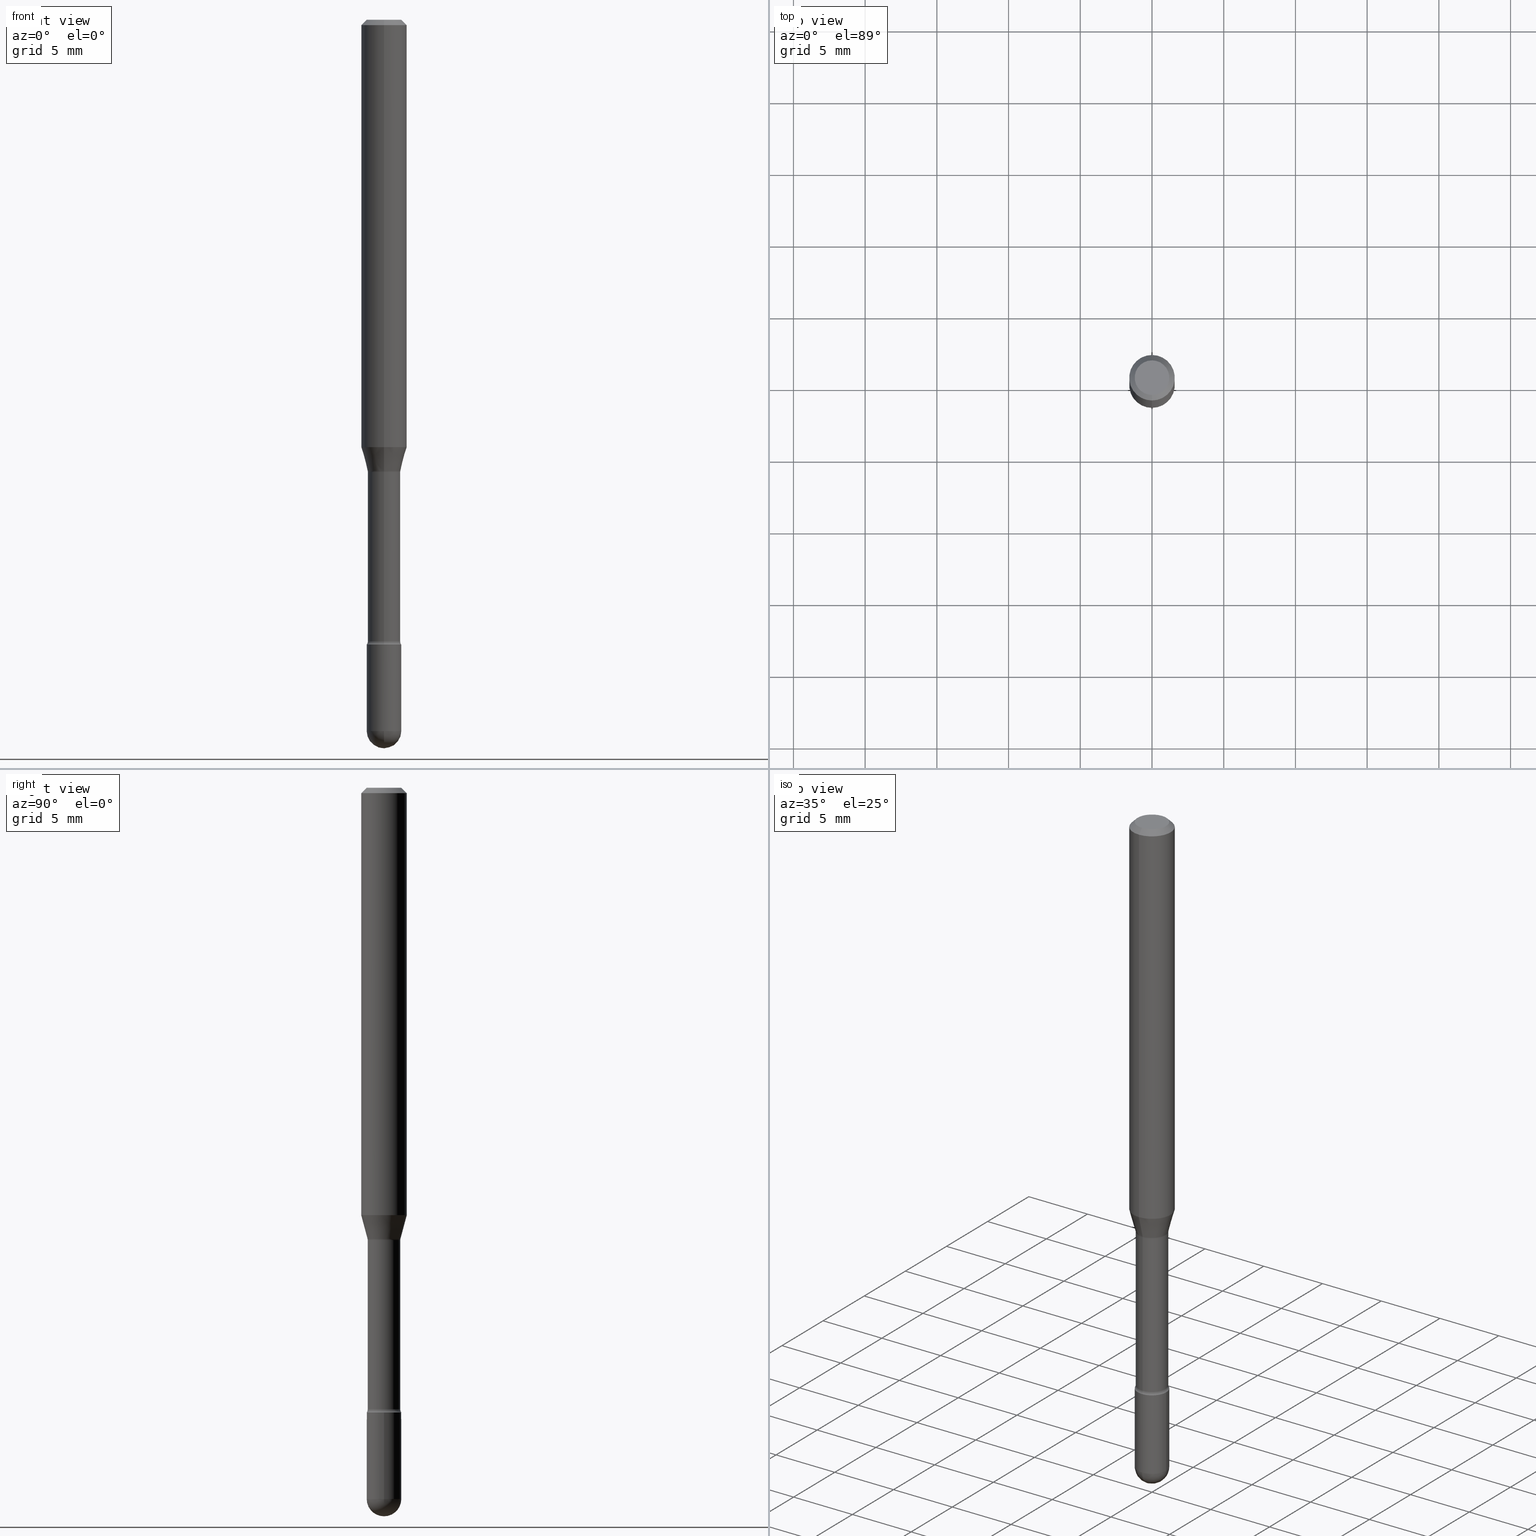
[diagram: canonical four-view strip — front | top / right | iso, engineering-drawing reading convention]
A machine part, canonical four-view strip (front | top / right | iso — engineering-drawing reading convention). The complete STEP part file that produces these views, byte-faithful:
ISO-10303-21;
HEADER;
FILE_DESCRIPTION (( 'STEP AP203' ),
    '1' );
FILE_NAME ('03773.STEP',
    '2024-04-09T20:24:47',
    ( '' ),
    ( '' ),
    'SwSTEP 2.0',
    'SolidWorks 2023',
    '' );
FILE_SCHEMA (( 'CONFIG_CONTROL_DESIGN' ));
ENDSEC;

DATA;
#1 = LINE ( 'NONE', #525, #320 ) ;
#2 = DIRECTION ( 'NONE',  ( -6.982962677686265922E-15, -1.000000000000000000, 3.491509824358550221E-15 ) ) ;
#3 = EDGE_LOOP ( 'NONE', ( #398, #395, #522, #301 ) ) ;
#4 = DIRECTION ( 'NONE',  ( -2.445448914856043624E-29, 3.491509824358551010E-15, 1.000000000000000000 ) ) ;
#5 = AXIS2_PLACEMENT_3D ( 'NONE', #421, #24, #65 ) ;
#6 = AXIS2_PLACEMENT_3D ( 'NONE', #251, #207, #156 ) ;
#7 = ORIENTED_EDGE ( 'NONE', *, *, #31, .T. ) ;
#8 = EDGE_CURVE ( 'NONE', #393, #205, #84, .T. ) ;
#9 = DIRECTION ( 'NONE',  ( -2.445448914856043624E-29, 3.491509824358551010E-15, 1.000000000000000000 ) ) ;
#10 = ORIENTED_EDGE ( 'NONE', *, *, #377, .F. ) ;
#11 = DIRECTION ( 'NONE',  ( -2.445468806185136597E-29, 3.491481338843145583E-15, 1.000000000000000000 ) ) ;
#12 = CARTESIAN_POINT ( 'NONE',  ( -4.287811248607203282E-16, -0.06250000000000005551, -0.01499999999999986587 ) ) ;
#13 = VERTEX_POINT ( 'NONE', #221 ) ;
#14 = EDGE_CURVE ( 'NONE', #293, #132, #387, .T. ) ;
#15 = ADVANCED_FACE ( 'NONE', ( #559 ), #175, .T. ) ;
#16 = DIRECTION ( 'NONE',  ( -2.445448914856043624E-29, 3.491509824358551010E-15, 1.000000000000000000 ) ) ;
#17 = CARTESIAN_POINT ( 'NONE',  ( -3.117892835586504621E-16, -0.04465000000000601821, -1.706203551853162415 ) ) ;
#18 = AXIS2_PLACEMENT_3D ( 'NONE', #240, #19, #544 ) ;
#19 = DIRECTION ( 'NONE',  ( -1.000000000000000000, 6.982962677686265922E-15, -4.883557194083112901E-29 ) ) ;
#20 = DIRECTION ( 'NONE',  ( -6.982962677686266711E-15, -1.000000000000000000, 5.751258934030028949E-15 ) ) ;
#21 = VERTEX_POINT ( 'NONE', #269 ) ;
#22 = DIRECTION ( 'NONE',  ( -2.445448914856043624E-29, 3.491509824358551010E-15, 1.000000000000000000 ) ) ;
#23 = DIRECTION ( 'NONE',  ( 1.839019923739599526E-15, 0.2588190451025248473, 0.9659258262890670910 ) ) ;
#24 = DIRECTION ( 'NONE',  ( -2.445448914856043624E-29, 3.491509824358551010E-15, 1.000000000000000000 ) ) ;
#25 = AXIS2_PLACEMENT_3D ( 'NONE', #168, #119, #433 ) ;
#26 = AXIS2_PLACEMENT_3D ( 'NONE', #232, #39, #223 ) ;
#27 = DIRECTION ( 'NONE',  ( -6.982962677686266711E-15, -1.000000000000000000, 3.491509824358551404E-15 ) ) ;
#28 = CARTESIAN_POINT ( 'NONE',  ( 3.316907271901453357E-16, 0.04749999999999317268, -1.952500000000000346 ) ) ;
#29 = SHAPE_DEFINITION_REPRESENTATION ( #166, #333 ) ;
#30 = CARTESIAN_POINT ( 'NONE',  ( -3.153583638081081446E-16, -0.04516111260566831043, -1.238092501787272814 ) ) ;
#31 = EDGE_CURVE ( 'NONE', #393, #280, #308, .T. ) ;
#32 = EDGE_CURVE ( 'NONE', #101, #397, #430, .T. ) ;
#33 = CLOSED_SHELL ( 'NONE', ( #510, #521, #15, #494, #174 ) ) ;
#34 = CIRCLE ( 'NONE', #120, 0.06250000000000000000 ) ;
#35 = EDGE_LOOP ( 'NONE', ( #204, #7, #566, #87 ) ) ;
#36 = AXIS2_PLACEMENT_3D ( 'NONE', #146, #493, #497 ) ;
#37 = FACE_OUTER_BOUND ( 'NONE', #187, .T. ) ;
#38 = DIRECTION ( 'NONE',  ( 2.445448914856043064E-29, -3.491509824358551010E-15, -1.000000000000000000 ) ) ;
#39 = DIRECTION ( 'NONE',  ( -2.445468806185136597E-29, 3.491481338843145583E-15, 1.000000000000000000 ) ) ;
#40 = DIRECTION ( 'NONE',  ( -6.982962677686266711E-15, -1.000000000000000000, 6.049115790211160649E-15 ) ) ;
#41 = ORIENTED_EDGE ( 'NONE', *, *, #300, .T. ) ;
#42 = ORIENTED_EDGE ( 'NONE', *, *, #341, .F. ) ;
#43 = APPROVAL_DATE_TIME ( #261, #260 ) ;
#44 = ORIENTED_EDGE ( 'NONE', *, *, #352, .F. ) ;
#45 = DIRECTION ( 'NONE',  ( -7.105427357601001070E-15, -1.000000000000000000, 0.000000000000000000 ) ) ;
#46 = ORIENTED_EDGE ( 'NONE', *, *, #128, .F. ) ;
#47 = AXIS2_PLACEMENT_3D ( 'NONE', #490, #56, #556 ) ;
#48 = ORIENTED_EDGE ( 'NONE', *, *, #461, .F. ) ;
#49 = AXIS2_PLACEMENT_3D ( 'NONE', #412, #200, #323 ) ;
#50 = AXIS2_PLACEMENT_3D ( 'NONE', #262, #217, #40 ) ;
#51 = CC_DESIGN_APPROVAL ( #343, ( #143 ) ) ;
#52 = EDGE_LOOP ( 'NONE', ( #48, #312, #469, #499 ) ) ;
#53 = CARTESIAN_POINT ( 'NONE',  ( 4.172433624402844054E-29, -5.957226463650771569E-15, -1.706203551853162859 ) ) ;
#54 = EDGE_LOOP ( 'NONE', ( #10, #249, #486, #429 ) ) ;
#55 = DIRECTION ( 'NONE',  ( -6.982962677686265922E-15, -1.000000000000000000, 6.118360568117042054E-15 ) ) ;
#56 = DIRECTION ( 'NONE',  ( -2.445468806185136597E-29, 3.491481338843145583E-15, 1.000000000000000000 ) ) ;
#57 = PERSON_AND_ORGANIZATION ( #313, #165 ) ;
#58 = ORIENTED_EDGE ( 'NONE', *, *, #405, .T. ) ;
#59 = APPROVAL_STATUS ( 'not_yet_approved' ) ;
#60 = CIRCLE ( 'NONE', #163, 0.04465000000000006464 ) ;
#61 = CIRCLE ( 'NONE', #18, 0.01499999999999999424 ) ;
#62 = CC_DESIGN_SECURITY_CLASSIFICATION ( #143, ( #259 ) ) ;
#63 = ORIENTED_EDGE ( 'NONE', *, *, #551, .F. ) ;
#64 = PERSON_AND_ORGANIZATION ( #313, #165 ) ;
#65 = DIRECTION ( 'NONE',  ( -6.982962677686265922E-15, -1.000000000000000000, 3.491509824358551010E-15 ) ) ;
#66 = APPROVAL_ROLE ( '' ) ;
#67 = CARTESIAN_POINT ( 'NONE',  ( 3.027691964987090790E-29, -4.322812133454920602E-15, -1.238092501787273036 ) ) ;
#68 = AXIS2_PLACEMENT_3D ( 'NONE', #103, #539, #507 ) ;
#69 = EDGE_CURVE ( 'NONE', #21, #224, #138, .T. ) ;
#70 = DIRECTION ( 'NONE',  ( -6.982962677686265922E-15, -1.000000000000000000, 3.483106191921935554E-15 ) ) ;
#71 = VERTEX_POINT ( 'NONE', #357 ) ;
#72 = EDGE_CURVE ( 'NONE', #293, #280, #220, .T. ) ;
#73 = DIRECTION ( 'NONE',  ( -1.807323732225329350E-15, -0.2588190451025180194, 0.9659258262890689783 ) ) ;
#74 = ORIENTED_EDGE ( 'NONE', *, *, #169, .T. ) ;
#75 = EDGE_CURVE ( 'NONE', #256, #224, #116, .T. ) ;
#76 = CIRCLE ( 'NONE', #516, 0.04749999999999999362 ) ;
#77 = CARTESIAN_POINT ( 'NONE',  ( 0.04750000000000000749, -3.316907271900977082E-16, 2.316183968503069432E-30 ) ) ;
#78 = VECTOR ( 'NONE', #434, 39.37007874015748143 ) ;
#79 = CARTESIAN_POINT ( 'NONE',  ( 0.000000000000000000, 0.000000000000000000, 0.000000000000000000 ) ) ;
#80 = CC_DESIGN_DATE_AND_TIME_ASSIGNMENT ( #295, #111, ( #143 ) ) ;
#81 = CARTESIAN_POINT ( 'NONE',  ( 3.375077994860895005E-16, 0.04749999999999401923, -1.715000000000000524 ) ) ;
#82 = DIRECTION ( 'NONE',  ( -2.445448914856043624E-29, 3.491509824358551010E-15, 1.000000000000000000 ) ) ;
#83 = ORIENTED_EDGE ( 'NONE', *, *, #325, .T. ) ;
#84 = CIRCLE ( 'NONE', #106, 0.04749999999999998668 ) ;
#85 = DIRECTION ( 'NONE',  ( 1.000000000000000000, -7.105427357601001070E-15, 4.926315857389035346E-29 ) ) ;
#86 = AXIS2_PLACEMENT_3D ( 'NONE', #183, #523, #342 ) ;
#87 = ORIENTED_EDGE ( 'NONE', *, *, #454, .F. ) ;
#88 = APPROVAL ( #252, 'UNSPECIFIED' ) ;
#89 = DATE_AND_TIME ( #384, #474 ) ;
#90 = DIRECTION ( 'NONE',  ( -1.000000000000000000, 7.105427357601001070E-15, -4.926315508542082329E-29 ) ) ;
#91 = DIRECTION ( 'NONE',  ( -2.445448914856043344E-29, 3.491509824358551010E-15, 1.000000000000000000 ) ) ;
#92 = ORIENTED_EDGE ( 'NONE', *, *, #352, .T. ) ;
#93 = AXIS2_PLACEMENT_3D ( 'NONE', #67, #462, #206 ) ;
#94 = TOROIDAL_SURFACE ( 'NONE', #185, 0.05965000000000000163, 0.01500000000000001853 ) ;
#95 = ADVANCED_FACE ( 'NONE', ( #511 ), #371, .T. ) ;
#96 = DIRECTION ( 'NONE',  ( 1.000000000000000000, -6.982962677686260400E-15, 0.000000000000000000 ) ) ;
#97 = MECHANICAL_CONTEXT ( 'NONE', #392, 'mechanical' ) ;
#98 = CARTESIAN_POINT ( 'NONE',  ( 3.037185896281941653E-29, -4.336367172035518711E-15, -1.241974787463810959 ) ) ;
#99 = ADVANCED_FACE ( 'NONE', ( #311 ), #472, .F. ) ;
#100 = DIRECTION ( 'NONE',  ( -2.445448914856043624E-29, 3.491509824358551010E-15, 1.000000000000000000 ) ) ;
#101 = VERTEX_POINT ( 'NONE', #258 ) ;
#102 = DIRECTION ( 'NONE',  ( -2.445448914856043624E-29, 3.491509824358551010E-15, 1.000000000000000000 ) ) ;
#103 = CARTESIAN_POINT ( 'NONE',  ( 3.668173372284085650E-31, -5.237264736537854963E-17, -0.01500000000000008271 ) ) ;
#104 = ORIENTED_EDGE ( 'NONE', *, *, #454, .T. ) ;
#105 = PERSON_AND_ORGANIZATION_ROLE ( 'design_supplier' ) ;
#106 = AXIS2_PLACEMENT_3D ( 'NONE', #435, #563, #178 ) ;
#107 = CIRCLE ( 'NONE', #550, 0.04749999999999999362 ) ;
#108 = DIRECTION ( 'NONE',  ( -6.982962677686265922E-15, -1.000000000000000000, 3.491509824358550221E-15 ) ) ;
#109 = CARTESIAN_POINT ( 'NONE',  ( 3.316907271900976096E-16, 0.04749999999999999362, 3.181714328381007077E-17 ) ) ;
#110 = MANIFOLD_SOLID_BREP ( 'Body-Move/Copy2[1]', #33 ) ;
#111 = DATE_TIME_ROLE ( 'classification_date' ) ;
#112 = PLANE ( 'NONE',  #246 ) ;
#113 = ADVANCED_FACE ( 'NONE', ( #37 ), #413, .F. ) ;
#114 = CC_DESIGN_PERSON_AND_ORGANIZATION_ASSIGNMENT ( #425, #338, ( #143 ) ) ;
#115 = AXIS2_PLACEMENT_3D ( 'NONE', #354, #16, #137 ) ;
#116 = LINE ( 'NONE', #515, #244 ) ;
#117 = ORIENTED_EDGE ( 'NONE', *, *, #237, .T. ) ;
#118 = CIRCLE ( 'NONE', #458, 0.06250000000000000000 ) ;
#119 = DIRECTION ( 'NONE',  ( -2.445448914856043624E-29, 3.491509824358551010E-15, 1.000000000000000000 ) ) ;
#120 = AXIS2_PLACEMENT_3D ( 'NONE', #374, #552, #211 ) ;
#121 = CARTESIAN_POINT ( 'NONE',  ( 3.037210600811164574E-29, -4.336331793743577757E-15, -1.241974787463810959 ) ) ;
#122 = CYLINDRICAL_SURFACE ( 'NONE', #339, 0.06250000000000000000 ) ;
#123 = CARTESIAN_POINT ( 'NONE',  ( 3.172573315168849457E-16, 0.04465000000000003688, 3.221774852336366388E-16 ) ) ;
#124 = ORIENTED_EDGE ( 'NONE', *, *, #405, .F. ) ;
#125 = EDGE_CURVE ( 'NONE', #224, #173, #118, .T. ) ;
#126 = DIRECTION ( 'NONE',  ( -4.851104656540964275E-15, -0.7071067811865500152, -0.7071067811865450192 ) ) ;
#127 = VERTEX_POINT ( 'NONE', #376 ) ;
#128 = EDGE_CURVE ( 'NONE', #513, #136, #60, .T. ) ;
#129 = ADVANCED_FACE ( 'NONE', ( #411 ), #130, .T. ) ;
#130 = CONICAL_SURFACE ( 'NONE', #93, 0.04516111260566398750, 0.2617993877991501850 ) ;
#131 = CIRCLE ( 'NONE', #373, 0.06250000000000000000 ) ;
#132 = VERTEX_POINT ( 'NONE', #282 ) ;
#133 = CARTESIAN_POINT ( 'NONE',  ( 4.774777844076478914E-29, -6.817117314091241226E-15, -1.952499999999999902 ) ) ;
#134 = DIRECTION ( 'NONE',  ( -6.982962677686265922E-15, -1.000000000000000000, 3.491509824358551010E-15 ) ) ;
#135 =( LENGTH_UNIT ( ) NAMED_UNIT ( * ) SI_UNIT ( $, .METRE. ) );
#136 = VERTEX_POINT ( 'NONE', #17 ) ;
#137 = DIRECTION ( 'NONE',  ( -6.982962677686265922E-15, -1.000000000000000000, 4.370956789862821150E-15 ) ) ;
#138 = LINE ( 'NONE', #12, #503 ) ;
#139 = PRODUCT_RELATED_PRODUCT_CATEGORY ( 'detail', '', ( #332 ) ) ;
#140 = ORIENTED_EDGE ( 'NONE', *, *, #533, .T. ) ;
#141 = FACE_OUTER_BOUND ( 'NONE', #366, .T. ) ;
#142 = CIRCLE ( 'NONE', #317, 0.04750000000000000749 ) ;
#143 = SECURITY_CLASSIFICATION ( '', '', #284 ) ;
#144 = VERTEX_POINT ( 'NONE', #199 ) ;
#145 = DIRECTION ( 'NONE',  ( 1.000000000000000000, -6.982962677686261977E-15, 0.000000000000000000 ) ) ;
#146 = CARTESIAN_POINT ( 'NONE',  ( 0.000000000000000000, 0.000000000000000000, 0.000000000000000000 ) ) ;
#147 =( NAMED_UNIT ( * ) SI_UNIT ( $, .STERADIAN. ) SOLID_ANGLE_UNIT ( ) );
#148 = UNCERTAINTY_MEASURE_WITH_UNIT (LENGTH_MEASURE( 1.000000000000000082E-05 ), #555, 'distance_accuracy_value', 'NONE');
#149 = DIRECTION ( 'NONE',  ( -6.982962677686267499E-15, -1.000000000000000000, 0.000000000000000000 ) ) ;
#150 = CARTESIAN_POINT ( 'NONE',  ( -1.169113584055446105E-44, 1.669184350826100908E-30, 4.780733988912460139E-16 ) ) ;
#151 = CALENDAR_DATE ( 2024, 9, 4 ) ;
#152 = CARTESIAN_POINT ( 'NONE',  ( 4.193944888978115205E-29, -5.987939348774914938E-15, -1.715000000000000080 ) ) ;
#153 = AXIS2_PLACEMENT_3D ( 'NONE', #152, #289, #334 ) ;
#154 = AXIS2_PLACEMENT_3D ( 'NONE', #447, #478, #134 ) ;
#155 = DESIGN_CONTEXT ( 'detailed design', #383, 'design' ) ;
#156 = DIRECTION ( 'NONE',  ( 1.000000000000000000, -6.982962677686260400E-15, 0.000000000000000000 ) ) ;
#157 = CARTESIAN_POINT ( 'NONE',  ( 4.193944888978115205E-29, -5.987939348774914938E-15, -1.715000000000000080 ) ) ;
#158 = EDGE_CURVE ( 'NONE', #535, #144, #76, .T. ) ;
#159 = ORIENTED_EDGE ( 'NONE', *, *, #377, .T. ) ;
#160 = CALENDAR_DATE ( 2024, 9, 4 ) ;
#161 = CC_DESIGN_PERSON_AND_ORGANIZATION_ASSIGNMENT ( #565, #442, ( #340 ) ) ;
#162 = APPROVAL_DATE_TIME ( #290, #343 ) ;
#163 = AXIS2_PLACEMENT_3D ( 'NONE', #292, #102, #55 ) ;
#164 = AXIS2_PLACEMENT_3D ( 'NONE', #191, #536, #287 ) ;
#165 = ORGANIZATION ( 'UNSPECIFIED', 'UNSPECIFIED', '' ) ;
#166 = PRODUCT_DEFINITION_SHAPE ( 'NONE', 'NONE',  #340 ) ;
#167 = CARTESIAN_POINT ( 'NONE',  ( 3.668173372284085650E-31, -5.237264736537854963E-17, -0.01500000000000008271 ) ) ;
#168 = CARTESIAN_POINT ( 'NONE',  ( 3.037210600811164574E-29, -4.336331793743577757E-15, -1.241974787463810959 ) ) ;
#169 = EDGE_CURVE ( 'NONE', #144, #535, #399, .T. ) ;
#170 = AXIS2_PLACEMENT_3D ( 'NONE', #109, #38, #349 ) ;
#171 = DIRECTION ( 'NONE',  ( 6.982962677686265922E-15, 1.000000000000000000, -5.751258934030028949E-15 ) ) ;
#172 =( GEOMETRIC_REPRESENTATION_CONTEXT ( 3 ) GLOBAL_UNCERTAINTY_ASSIGNED_CONTEXT ( ( #148 ) ) GLOBAL_UNIT_ASSIGNED_CONTEXT ( ( #555, #286, #147 ) ) REPRESENTATION_CONTEXT ( 'NONE', 'WORKASPACE' ) );
#173 = VERTEX_POINT ( 'NONE', #542 ) ;
#174 = ADVANCED_FACE ( 'NONE', ( #548 ), #285, .T. ) ;
#175 = PLANE ( 'NONE',  #423 ) ;
#176 = CYLINDRICAL_SURFACE ( 'NONE', #319, 0.04465000000000003688 ) ;
#177 = ORIENTED_EDGE ( 'NONE', *, *, #218, .F. ) ;
#178 = DIRECTION ( 'NONE',  ( 6.982962677686265133E-15, 1.000000000000000000, 0.000000000000000000 ) ) ;
#179 = CARTESIAN_POINT ( 'NONE',  ( -0.04750000000000000749, -6.064996105617570464E-15, -1.952499999999999902 ) ) ;
#180 = CYLINDRICAL_SURFACE ( 'NONE', #386, 0.04750000000000000749 ) ;
#181 = ORIENTED_EDGE ( 'NONE', *, *, #406, .F. ) ;
#182 = DIRECTION ( 'NONE',  ( 4.937700262164548042E-15, 0.7071067811865451302, -0.7071067811865499042 ) ) ;
#183 = CARTESIAN_POINT ( 'NONE',  ( 3.027691964987090790E-29, -4.322812133454920602E-15, -1.238092501787273036 ) ) ;
#184 = AXIS2_PLACEMENT_3D ( 'NONE', #346, #400, #188 ) ;
#185 = AXIS2_PLACEMENT_3D ( 'NONE', #121, #557, #388 ) ;
#186 = CIRCLE ( 'NONE', #50, 0.04516111260566398750 ) ;
#187 = EDGE_LOOP ( 'NONE', ( #46, #378, #365, #231 ) ) ;
#188 = DIRECTION ( 'NONE',  ( -6.982962677686265922E-15, -1.000000000000000000, 6.118360568117049942E-15 ) ) ;
#189 = CARTESIAN_POINT ( 'NONE',  ( 3.824891074290529484E-16, 0.04516111260565967150, -1.238092501787273259 ) ) ;
#190 = CALENDAR_DATE ( 2024, 9, 4 ) ;
#191 = CARTESIAN_POINT ( 'NONE',  ( 4.238387418809301436E-16, 0.05964999999999566482, -1.241974787463811181 ) ) ;
#192 = ORIENTED_EDGE ( 'NONE', *, *, #337, .F. ) ;
#193 = DIRECTION ( 'NONE',  ( -6.982962677686266711E-15, -1.000000000000000000, 6.049115790211160649E-15 ) ) ;
#194 = PERSON_AND_ORGANIZATION ( #313, #165 ) ;
#195 = CARTESIAN_POINT ( 'NONE',  ( 0.04749999999999999362, -6.319581223306092199E-15, -1.715000000000000080 ) ) ;
#196 = ORIENTED_EDGE ( 'NONE', *, *, #337, .T. ) ;
#197 = CIRCLE ( 'NONE', #288, 0.04749999999999999362 ) ;
#198 = ADVANCED_FACE ( 'NONE', ( #368 ), #545, .T. ) ;
#199 = CARTESIAN_POINT ( 'NONE',  ( -3.316907271900557507E-16, -0.04750000000000598882, -1.714999999999999858 ) ) ;
#200 = DIRECTION ( 'NONE',  ( -1.000000000000000000, 6.982962677686265922E-15, -4.883557194083112340E-29 ) ) ;
#201 = ORIENTED_EDGE ( 'NONE', *, *, #14, .T. ) ;
#202 = EDGE_CURVE ( 'NONE', #263, #534, #505, .T. ) ;
#203 = DIRECTION ( 'NONE',  ( 1.000000000000000000, -6.982962677686266711E-15, 4.876176775795934672E-29 ) ) ;
#204 = ORIENTED_EDGE ( 'NONE', *, *, #8, .F. ) ;
#205 = VERTEX_POINT ( 'NONE', #28 ) ;
#206 = DIRECTION ( 'NONE',  ( -6.982962677686266711E-15, -1.000000000000000000, 6.049115790211160649E-15 ) ) ;
#207 = DIRECTION ( 'NONE',  ( -2.445468806185136597E-29, 3.491481338843145583E-15, 1.000000000000000000 ) ) ;
#208 = ORIENTED_EDGE ( 'NONE', *, *, #341, .T. ) ;
#209 = DIRECTION ( 'NONE',  ( -6.982962677686265922E-15, -1.000000000000000000, 3.483106191921935554E-15 ) ) ;
#210 = AXIS2_PLACEMENT_3D ( 'NONE', #479, #85, #267 ) ;
#211 = DIRECTION ( 'NONE',  ( -6.982962677686265922E-15, -1.000000000000000000, 4.370956789862821150E-15 ) ) ;
#212 = PERSON_AND_ORGANIZATION ( #313, #165 ) ;
#213 = EDGE_CURVE ( 'NONE', #534, #256, #34, .T. ) ;
#214 = EDGE_LOOP ( 'NONE', ( #415, #314, #484, #181 ) ) ;
#215 = TOROIDAL_SURFACE ( 'NONE', #154, 0.05965000000000005714, 0.01499999999999999771 ) ;
#216 = ADVANCED_FACE ( 'NONE', ( #509 ), #112, .F. ) ;
#217 = DIRECTION ( 'NONE',  ( -2.445448914856043624E-29, 3.491509824358551010E-15, 1.000000000000000000 ) ) ;
#218 = EDGE_CURVE ( 'NONE', #132, #464, #554, .T. ) ;
#219 = FACE_OUTER_BOUND ( 'NONE', #52, .T. ) ;
#220 = CIRCLE ( 'NONE', #47, 0.04750000000000000749 ) ;
#221 = CARTESIAN_POINT ( 'NONE',  ( 0.04750000000000000749, -6.734194632293715468E-15, -1.952499999999999902 ) ) ;
#222 = CIRCLE ( 'NONE', #460, 0.01500000000000001853 ) ;
#223 = DIRECTION ( 'NONE',  ( 1.000000000000000000, -6.982962677686260400E-15, 0.000000000000000000 ) ) ;
#224 = VERTEX_POINT ( 'NONE', #243 ) ;
#225 = ORIENTED_EDGE ( 'NONE', *, *, #364, .F. ) ;
#226 = CARTESIAN_POINT ( 'NONE',  ( 4.440892098500625669E-16, 0.06250000000000000000, 2.598540348688366251E-16 ) ) ;
#227 = CARTESIAN_POINT ( 'NONE',  ( -3.375077994859997675E-16, -0.04750000000000682149, -1.952499999999999680 ) ) ;
#228 = ORIENTED_EDGE ( 'NONE', *, *, #325, .F. ) ;
#229 = DIRECTION ( 'NONE',  ( -2.445448914856043624E-29, 3.491509824358551010E-15, 1.000000000000000000 ) ) ;
#230 = ORIENTED_EDGE ( 'NONE', *, *, #501, .F. ) ;
#231 = ORIENTED_EDGE ( 'NONE', *, *, #266, .F. ) ;
#232 = CARTESIAN_POINT ( 'NONE',  ( 4.774777844076478914E-29, -6.817117314091241226E-15, -1.952499999999999902 ) ) ;
#233 = VECTOR ( 'NONE', #437, 39.37007874015748143 ) ;
#234 = CIRCLE ( 'NONE', #115, 0.06250000000000000000 ) ;
#235 = APPROVAL_PERSON_ORGANIZATION ( #367, #343, #66 ) ;
#236 = ORIENTED_EDGE ( 'NONE', *, *, #379, .T. ) ;
#237 = EDGE_CURVE ( 'NONE', #13, #205, #142, .T. ) ;
#238 = DIRECTION ( 'NONE',  ( -1.000000000000000000, 6.982962677686265922E-15, -4.883557194083112901E-29 ) ) ;
#239 = EDGE_LOOP ( 'NONE', ( #230, #44, #448, #74 ) ) ;
#240 = CARTESIAN_POINT ( 'NONE',  ( -4.165337237239444233E-16, -0.05965000000000601765, -1.706203551853162415 ) ) ;
#241 = ADVANCED_FACE ( 'NONE', ( #456 ), #254, .T. ) ;
#242 = ORIENTED_EDGE ( 'NONE', *, *, #32, .T. ) ;
#243 = CARTESIAN_POINT ( 'NONE',  ( -4.364351673553912750E-16, -0.06250000000000005551, -0.01499999999999986587 ) ) ;
#244 = VECTOR ( 'NONE', #428, 39.37007874015748143 ) ;
#245 = CARTESIAN_POINT ( 'NONE',  ( 3.027691964987090790E-29, -4.322812133454920602E-15, -1.238092501787273036 ) ) ;
#246 = AXIS2_PLACEMENT_3D ( 'NONE', #297, #466, #404 ) ;
#247 = EDGE_CURVE ( 'NONE', #256, #534, #234, .T. ) ;
#248 = APPROVAL_PERSON_ORGANIZATION ( #212, #260, #298 ) ;
#249 = ORIENTED_EDGE ( 'NONE', *, *, #213, .T. ) ;
#250 = COORDINATED_UNIVERSAL_TIME_OFFSET ( 5, 0, .BEHIND. ) ;
#251 = CARTESIAN_POINT ( 'NONE',  ( 4.774777844076478914E-29, -6.817117314091241226E-15, -1.952499999999999902 ) ) ;
#252 = APPROVAL_STATUS ( 'not_yet_approved' ) ;
#253 = PERSON_AND_ORGANIZATION_ROLE ( 'design_owner' ) ;
#254 = CONICAL_SURFACE ( 'NONE', #351, 0.04516111260566398750, 0.2617993877991501850 ) ;
#255 = COORDINATED_UNIVERSAL_TIME_OFFSET ( 5, 0, .BEHIND. ) ;
#256 = VERTEX_POINT ( 'NONE', #418 ) ;
#257 = AXIS2_PLACEMENT_3D ( 'NONE', #167, #514, #305 ) ;
#258 = CARTESIAN_POINT ( 'NONE',  ( -3.117892835586614568E-16, -0.04465000000000434593, -1.241974787463810737 ) ) ;
#259 = PRODUCT_DEFINITION_FORMATION_WITH_SPECIFIED_SOURCE ( 'ANY', '', #332, .NOT_KNOWN. ) ;
#260 = APPROVAL ( #336, 'UNSPECIFIED' ) ;
#261 = DATE_AND_TIME ( #190, #310 ) ;
#262 = CARTESIAN_POINT ( 'NONE',  ( 3.027691964987090790E-29, -4.322812133454920602E-15, -1.238092501787273036 ) ) ;
#263 = VERTEX_POINT ( 'NONE', #189 ) ;
#264 = CIRCLE ( 'NONE', #6, 0.04750000000000000749 ) ;
#265 = CARTESIAN_POINT ( 'NONE',  ( 3.172573315169266568E-16, 0.04464999999999567232, -1.241974787463811181 ) ) ;
#266 = EDGE_CURVE ( 'NONE', #136, #144, #61, .T. ) ;
#267 = DIRECTION ( 'NONE',  ( 7.105427357601001859E-15, 1.000000000000000000, 0.000000000000000000 ) ) ;
#268 = ORIENTED_EDGE ( 'NONE', *, *, #359, .T. ) ;
#269 = CARTESIAN_POINT ( 'NONE',  ( -3.773273898774340269E-16, -0.04749999999999999362, 8.310103764746753259E-17 ) ) ;
#270 = ORIENTED_EDGE ( 'NONE', *, *, #498, .T. ) ;
#271 = EDGE_LOOP ( 'NONE', ( #63, #348, #270, #324 ) ) ;
#272 = ORIENTED_EDGE ( 'NONE', *, *, #69, .F. ) ;
#273 = ORIENTED_EDGE ( 'NONE', *, *, #75, .F. ) ;
#274 = EDGE_CURVE ( 'NONE', #173, #224, #131, .T. ) ;
#275 = AXIS2_PLACEMENT_3D ( 'NONE', #53, #532, #455 ) ;
#276 = COORDINATED_UNIVERSAL_TIME_OFFSET ( 5, 0, .BEHIND. ) ;
#277 = EDGE_LOOP ( 'NONE', ( #208, #306 ) ) ;
#278 = DIRECTION ( 'NONE',  ( -2.445468806185136597E-29, 3.491481338843145583E-15, 1.000000000000000000 ) ) ;
#279 = EDGE_CURVE ( 'NONE', #127, #256, #508, .T. ) ;
#280 = VERTEX_POINT ( 'NONE', #227 ) ;
#281 = DIRECTION ( 'NONE',  ( -6.982962677686266711E-15, -1.000000000000000000, 3.491509824358551404E-15 ) ) ;
#282 = CARTESIAN_POINT ( 'NONE',  ( -0.04749999999999999362, -6.064996105617570464E-15, -1.715000000000000080 ) ) ;
#283 = SPHERICAL_SURFACE ( 'NONE', #49, 0.04749999999999998668 ) ;
#284 = SECURITY_CLASSIFICATION_LEVEL ( 'unclassified' ) ;
#285 = CYLINDRICAL_SURFACE ( 'NONE', #481, 0.04750000000000000749 ) ;
#286 =( NAMED_UNIT ( * ) PLANE_ANGLE_UNIT ( ) SI_UNIT ( $, .RADIAN. ) );
#287 = DIRECTION ( 'NONE',  ( 7.105427357601001859E-15, 1.000000000000000000, 0.000000000000000000 ) ) ;
#288 = AXIS2_PLACEMENT_3D ( 'NONE', #438, #9, #281 ) ;
#289 = DIRECTION ( 'NONE',  ( -2.445448914856043624E-29, 3.491509824358551010E-15, 1.000000000000000000 ) ) ;
#290 = DATE_AND_TIME ( #151, #417 ) ;
#291 = CC_DESIGN_PERSON_AND_ORGANIZATION_ASSIGNMENT ( #457, #105, ( #259 ) ) ;
#292 = CARTESIAN_POINT ( 'NONE',  ( 4.172433624402844054E-29, -5.957226463650771569E-15, -1.706203551853162859 ) ) ;
#293 = VERTEX_POINT ( 'NONE', #179 ) ;
#294 = CARTESIAN_POINT ( 'NONE',  ( 3.208890050080145858E-16, 0.04516111260565967150, -1.238092501787273259 ) ) ;
#295 = DATE_AND_TIME ( #160, #375 ) ;
#296 = DIRECTION ( 'NONE',  ( -2.445448914856043624E-29, 3.491509824358551010E-15, 1.000000000000000000 ) ) ;
#297 = CARTESIAN_POINT ( 'NONE',  ( 3.316907271901395178E-16, 0.04749999999999401229, -1.715000000000000524 ) ) ;
#298 = APPROVAL_ROLE ( '' ) ;
#299 = VECTOR ( 'NONE', #476, 39.37007874015748143 ) ;
#300 = EDGE_CURVE ( 'NONE', #13, #464, #307, .T. ) ;
#301 = ORIENTED_EDGE ( 'NONE', *, *, #213, .F. ) ;
#302 = ADVANCED_FACE ( 'NONE', ( #519 ), #122, .T. ) ;
#303 = CC_DESIGN_DATE_AND_TIME_ASSIGNMENT ( #353, #407, ( #340 ) ) ;
#304 = CARTESIAN_POINT ( 'NONE',  ( 3.273825655015081526E-16, 0.04464999999999410413, -1.706203551853163081 ) ) ;
#305 = DIRECTION ( 'NONE',  ( 6.982962677686265922E-15, 1.000000000000000000, -3.483106191921935554E-15 ) ) ;
#306 = ORIENTED_EDGE ( 'NONE', *, *, #218, .T. ) ;
#307 = LINE ( 'NONE', #77, #78 ) ;
#308 = CIRCLE ( 'NONE', #330, 0.04749999999999998668 ) ;
#309 = AXIS2_PLACEMENT_3D ( 'NONE', #506, #465, #27 ) ;
#310 = LOCAL_TIME ( 16, 24, 47.00000000000000000, #255 ) ;
#311 = FACE_OUTER_BOUND ( 'NONE', #271, .T. ) ;
#312 = ORIENTED_EDGE ( 'NONE', *, *, #69, .T. ) ;
#313 = PERSON ( 'UNSPECIFIED', 'UNSPECIFIED', 'UNSPECIFIED', ('UNSPECIFIED'), ('UNSPECIFIED'), ('UNSPECIFIED') ) ;
#314 = ORIENTED_EDGE ( 'NONE', *, *, #8, .T. ) ;
#315 = CLOSED_SHELL ( 'NONE', ( #99, #198, #113, #427, #436, #129, #241, #302, #95, #370, #216, #390, #562, #422 ) ) ;
#316 = DIRECTION ( 'NONE',  ( -2.445468806185136877E-29, 3.491481338843145188E-15, 1.000000000000000000 ) ) ;
#317 = AXIS2_PLACEMENT_3D ( 'NONE', #452, #278, #96 ) ;
#318 = CARTESIAN_POINT ( 'NONE',  ( -3.117892835586920252E-16, -0.04465000000000003688, 6.339693125488554876E-16 ) ) ;
#319 = AXIS2_PLACEMENT_3D ( 'NONE', #396, #229, #2 ) ;
#320 = VECTOR ( 'NONE', #182, 39.37007874015748143 ) ;
#321 = CC_DESIGN_PERSON_AND_ORGANIZATION_ASSIGNMENT ( #64, #468, ( #259 ) ) ;
#322 = CYLINDRICAL_SURFACE ( 'NONE', #526, 0.06250000000000000000 ) ;
#323 = DIRECTION ( 'NONE',  ( 6.982962677686265922E-15, 1.000000000000000000, -5.751258934030028949E-15 ) ) ;
#324 = ORIENTED_EDGE ( 'NONE', *, *, #359, .F. ) ;
#325 = EDGE_CURVE ( 'NONE', #127, #263, #401, .T. ) ;
#326 = ORIENTED_EDGE ( 'NONE', *, *, #128, .T. ) ;
#327 = EDGE_LOOP ( 'NONE', ( #561, #446 ) ) ;
#328 = CARTESIAN_POINT ( 'NONE',  ( 3.668173372284085650E-31, -5.237264736537854963E-17, -0.01500000000000008271 ) ) ;
#329 = CARTESIAN_POINT ( 'NONE',  ( -1.169113584055446105E-44, 1.669184350826100908E-30, 4.780733988912460139E-16 ) ) ;
#330 = AXIS2_PLACEMENT_3D ( 'NONE', #133, #90, #45 ) ;
#331 = AXIS2_PLACEMENT_3D ( 'NONE', #492, #11, #496 ) ;
#332 = PRODUCT ( '03773', '03773', '', ( #97 ) ) ;
#333 = ADVANCED_BREP_SHAPE_REPRESENTATION ( '03773', ( #110, #495, #36 ), #172 ) ;
#334 = DIRECTION ( 'NONE',  ( -6.982962677686266711E-15, -1.000000000000000000, 5.751258934030028949E-15 ) ) ;
#335 = ORIENTED_EDGE ( 'NONE', *, *, #202, .T. ) ;
#336 = APPROVAL_STATUS ( 'not_yet_approved' ) ;
#337 = EDGE_CURVE ( 'NONE', #71, #21, #197, .T. ) ;
#338 = PERSON_AND_ORGANIZATION_ROLE ( 'classification_officer' ) ;
#339 = AXIS2_PLACEMENT_3D ( 'NONE', #459, #361, #488 ) ;
#340 = PRODUCT_DEFINITION ( 'UNKNOWN', '', #259, #155 ) ;
#341 = EDGE_CURVE ( 'NONE', #464, #132, #107, .T. ) ;
#342 = DIRECTION ( 'NONE',  ( -6.982962677686266711E-15, -1.000000000000000000, 6.049115790211160649E-15 ) ) ;
#343 = APPROVAL ( #59, 'UNSPECIFIED' ) ;
#344 = ORIENTED_EDGE ( 'NONE', *, *, #247, .T. ) ;
#345 = CC_DESIGN_APPROVAL ( #260, ( #340 ) ) ;
#346 = CARTESIAN_POINT ( 'NONE',  ( 3.037185896281941653E-29, -4.336367172035518711E-15, -1.241974787463810959 ) ) ;
#347 = DIRECTION ( 'NONE',  ( -6.982962677686265922E-15, -1.000000000000000000, 6.118360568117049942E-15 ) ) ;
#348 = ORIENTED_EDGE ( 'NONE', *, *, #364, .T. ) ;
#349 = DIRECTION ( 'NONE',  ( 6.982962677686265922E-15, 1.000000000000000000, -3.491509824358551010E-15 ) ) ;
#350 = DIRECTION ( 'NONE',  ( 1.000000000000000000, -6.982962677686266711E-15, 4.876176775795934672E-29 ) ) ;
#351 = AXIS2_PLACEMENT_3D ( 'NONE', #245, #410, #193 ) ;
#352 = EDGE_CURVE ( 'NONE', #136, #513, #414, .T. ) ;
#353 = DATE_AND_TIME ( #451, #381 ) ;
#354 = CARTESIAN_POINT ( 'NONE',  ( 2.869447922605103141E-29, -4.096877898940172481E-15, -1.173382893084895739 ) ) ;
#355 = CARTESIAN_POINT ( 'NONE',  ( 4.774777844076478914E-29, -6.817117314091241226E-15, -1.952499999999999902 ) ) ;
#356 = DIRECTION ( 'NONE',  ( -2.445468806185136597E-29, 3.491481338843145583E-15, 1.000000000000000000 ) ) ;
#357 = CARTESIAN_POINT ( 'NONE',  ( 3.840629472727447874E-16, 0.04749999999999999362, -2.485923956665947867E-16 ) ) ;
#358 = EDGE_LOOP ( 'NONE', ( #225, #228, #268, #242 ) ) ;
#359 = EDGE_CURVE ( 'NONE', #127, #101, #222, .T. ) ;
#360 = FACE_OUTER_BOUND ( 'NONE', #214, .T. ) ;
#361 = DIRECTION ( 'NONE',  ( -2.445448914856043624E-29, 3.491509824358551010E-15, 1.000000000000000000 ) ) ;
#362 = AXIS2_PLACEMENT_3D ( 'NONE', #329, #502, #380 ) ;
#363 = CARTESIAN_POINT ( 'NONE',  ( 0.000000000000000000, 0.000000000000000000, 0.000000000000000000 ) ) ;
#364 = EDGE_CURVE ( 'NONE', #263, #397, #558, .T. ) ;
#365 = ORIENTED_EDGE ( 'NONE', *, *, #158, .T. ) ;
#366 = EDGE_LOOP ( 'NONE', ( #196, #475 ) ) ;
#367 = PERSON_AND_ORGANIZATION ( #313, #165 ) ;
#368 = FACE_OUTER_BOUND ( 'NONE', #439, .T. ) ;
#369 = COORDINATED_UNIVERSAL_TIME_OFFSET ( 5, 0, .BEHIND. ) ;
#370 = ADVANCED_FACE ( 'NONE', ( #141 ), #491, .F. ) ;
#371 = CONICAL_SURFACE ( 'NONE', #257, 0.06250000000000000000, 0.7853981633974483900 ) ;
#372 = ORIENTED_EDGE ( 'NONE', *, *, #498, .F. ) ;
#373 = AXIS2_PLACEMENT_3D ( 'NONE', #328, #4, #70 ) ;
#374 = CARTESIAN_POINT ( 'NONE',  ( 2.869447922605103141E-29, -4.096877898940172481E-15, -1.173382893084895739 ) ) ;
#375 = LOCAL_TIME ( 16, 24, 47.00000000000000000, #547 ) ;
#376 = CARTESIAN_POINT ( 'NONE',  ( -3.153583638081081446E-16, -0.04516111260566831043, -1.238092501787272814 ) ) ;
#377 = EDGE_CURVE ( 'NONE', #534, #173, #518, .T. ) ;
#378 = ORIENTED_EDGE ( 'NONE', *, *, #501, .T. ) ;
#379 = EDGE_CURVE ( 'NONE', #71, #173, #1, .T. ) ;
#380 = DIRECTION ( 'NONE',  ( -6.982962677686265922E-15, -1.000000000000000000, 3.491509824358550221E-15 ) ) ;
#381 = LOCAL_TIME ( 16, 24, 47.00000000000000000, #276 ) ;
#382 = LENGTH_MEASURE_WITH_UNIT ( LENGTH_MEASURE( 0.02539999999999999897 ), #135 );
#383 = APPLICATION_CONTEXT ( 'configuration controlled 3d designs of mechanical parts and assemblies' ) ;
#384 = CALENDAR_DATE ( 2024, 9, 4 ) ;
#385 = CC_DESIGN_PERSON_AND_ORGANIZATION_ASSIGNMENT ( #194, #253, ( #332 ) ) ;
#386 = AXIS2_PLACEMENT_3D ( 'NONE', #79, #432, #350 ) ;
#387 = LINE ( 'NONE', #524, #473 ) ;
#388 = DIRECTION ( 'NONE',  ( -6.982962677686265922E-15, -1.000000000000000000, 3.491509824358551010E-15 ) ) ;
#389 = FACE_OUTER_BOUND ( 'NONE', #480, .T. ) ;
#390 = ADVANCED_FACE ( 'NONE', ( #528 ), #215, .F. ) ;
#391 = EDGE_LOOP ( 'NONE', ( #272, #192, #236, #409 ) ) ;
#392 = APPLICATION_CONTEXT ( 'configuration controlled 3d designs of mechanical parts and assemblies' ) ;
#393 = VERTEX_POINT ( 'NONE', #485 ) ;
#394 = FACE_OUTER_BOUND ( 'NONE', #487, .T. ) ;
#395 = ORIENTED_EDGE ( 'NONE', *, *, #551, .T. ) ;
#396 = CARTESIAN_POINT ( 'NONE',  ( -1.169113584055446105E-44, 1.669184350826100908E-30, 4.780733988912460139E-16 ) ) ;
#397 = VERTEX_POINT ( 'NONE', #265 ) ;
#398 = ORIENTED_EDGE ( 'NONE', *, *, #202, .F. ) ;
#399 = CIRCLE ( 'NONE', #153, 0.04749999999999999362 ) ;
#400 = DIRECTION ( 'NONE',  ( -2.445448914856043624E-29, 3.491509824358551010E-15, 1.000000000000000000 ) ) ;
#401 = CIRCLE ( 'NONE', #86, 0.04516111260566398750 ) ;
#402 = FACE_OUTER_BOUND ( 'NONE', #358, .T. ) ;
#403 = SPHERICAL_SURFACE ( 'NONE', #489, 0.04749999999999998668 ) ;
#404 = DIRECTION ( 'NONE',  ( -6.982962677686265922E-15, -1.000000000000000000, 3.491509824358551010E-15 ) ) ;
#405 = EDGE_CURVE ( 'NONE', #136, #101, #564, .T. ) ;
#406 = EDGE_CURVE ( 'NONE', #280, #13, #424, .T. ) ;
#407 = DATE_TIME_ROLE ( 'creation_date' ) ;
#408 = DIMENSIONAL_EXPONENTS ( 1.000000000000000000, 0.000000000000000000, 0.000000000000000000, 0.000000000000000000, 0.000000000000000000, 0.000000000000000000, 0.000000000000000000 ) ;
#409 = ORIENTED_EDGE ( 'NONE', *, *, #274, .T. ) ;
#410 = DIRECTION ( 'NONE',  ( -2.445448914856043624E-29, 3.491509824358551010E-15, 1.000000000000000000 ) ) ;
#411 = FACE_OUTER_BOUND ( 'NONE', #529, .T. ) ;
#412 = CARTESIAN_POINT ( 'NONE',  ( 4.774777844076478914E-29, -6.817117314091241226E-15, -1.952499999999999902 ) ) ;
#413 = TOROIDAL_SURFACE ( 'NONE', #5, 0.05965000000000005714, 0.01499999999999999771 ) ;
#414 = CIRCLE ( 'NONE', #275, 0.04465000000000006464 ) ;
#415 = ORIENTED_EDGE ( 'NONE', *, *, #31, .F. ) ;
#416 = CARTESIAN_POINT ( 'NONE',  ( 4.193979002607509757E-29, -5.987890496115994688E-15, -1.715000000000000080 ) ) ;
#417 = LOCAL_TIME ( 16, 24, 47.00000000000000000, #250 ) ;
#418 = CARTESIAN_POINT ( 'NONE',  ( -4.364351673553627281E-16, -0.06250000000000405231, -1.173382893084895295 ) ) ;
#419 = APPROVAL_DATE_TIME ( #89, #88 ) ;
#420 = DIRECTION ( 'NONE',  ( -2.445468806185136597E-29, 3.491481338843145583E-15, 1.000000000000000000 ) ) ;
#421 = CARTESIAN_POINT ( 'NONE',  ( 4.172467563059193299E-29, -5.957177861563210606E-15, -1.706203551853162859 ) ) ;
#422 = ADVANCED_FACE ( 'NONE', ( #402 ), #94, .F. ) ;
#423 = AXIS2_PLACEMENT_3D ( 'NONE', #530, #445, #482 ) ;
#424 = CIRCLE ( 'NONE', #26, 0.04750000000000000749 ) ;
#425 = PERSON_AND_ORGANIZATION ( #313, #165 ) ;
#426 = APPLICATION_PROTOCOL_DEFINITION ( 'international standard', 'config_control_design', 1994, #383 ) ;
#427 = ADVANCED_FACE ( 'NONE', ( #219 ), #504, .T. ) ;
#428 = DIRECTION ( 'NONE',  ( -2.445448914856043344E-29, 3.491509824358551010E-15, 1.000000000000000000 ) ) ;
#429 = ORIENTED_EDGE ( 'NONE', *, *, #274, .F. ) ;
#430 = CIRCLE ( 'NONE', #184, 0.04465000000000000913 ) ;
#431 = VECTOR ( 'NONE', #23, 39.37007874015748143 ) ;
#432 = DIRECTION ( 'NONE',  ( -2.445468806185136597E-29, 3.491481338843145583E-15, 1.000000000000000000 ) ) ;
#433 = DIRECTION ( 'NONE',  ( -6.982962677686265922E-15, -1.000000000000000000, 3.491509824358551010E-15 ) ) ;
#434 = DIRECTION ( 'NONE',  ( -2.445468806185136877E-29, 3.491481338843145188E-15, 1.000000000000000000 ) ) ;
#435 = CARTESIAN_POINT ( 'NONE',  ( 4.774777844076478914E-29, -6.817117314091241226E-15, -1.952499999999999902 ) ) ;
#436 = ADVANCED_FACE ( 'NONE', ( #463 ), #322, .T. ) ;
#437 = DIRECTION ( 'NONE',  ( -2.445448914856043344E-29, 3.491509824358551010E-15, 1.000000000000000000 ) ) ;
#438 = CARTESIAN_POINT ( 'NONE',  ( 2.023408214276559532E-45, -2.889209693522794899E-31, -8.274567900956363938E-17 ) ) ;
#439 = EDGE_LOOP ( 'NONE', ( #92, #140, #540, #124 ) ) ;
#440 = VECTOR ( 'NONE', #73, 39.37007874015749564 ) ;
#441 = CC_DESIGN_APPROVAL ( #88, ( #259 ) ) ;
#442 = PERSON_AND_ORGANIZATION_ROLE ( 'creator' ) ;
#443 = LINE ( 'NONE', #123, #299 ) ;
#444 = ORIENTED_EDGE ( 'NONE', *, *, #300, .F. ) ;
#445 = DIRECTION ( 'NONE',  ( -2.438088387897960049E-29, 3.491481338843145188E-15, 1.000000000000000000 ) ) ;
#446 = ORIENTED_EDGE ( 'NONE', *, *, #158, .F. ) ;
#447 = CARTESIAN_POINT ( 'NONE',  ( 4.172467563059193299E-29, -5.957177861563210606E-15, -1.706203551853162859 ) ) ;
#448 = ORIENTED_EDGE ( 'NONE', *, *, #266, .T. ) ;
#449 = AXIS2_PLACEMENT_3D ( 'NONE', #98, #82, #347 ) ;
#450 = ORIENTED_EDGE ( 'NONE', *, *, #14, .F. ) ;
#451 = CALENDAR_DATE ( 2024, 9, 4 ) ;
#452 = CARTESIAN_POINT ( 'NONE',  ( 4.774777844076478914E-29, -6.817117314091241226E-15, -1.952499999999999902 ) ) ;
#453 = CARTESIAN_POINT ( 'NONE',  ( 3.668173372284085650E-31, -5.237264736537854963E-17, -0.01500000000000008271 ) ) ;
#454 = EDGE_CURVE ( 'NONE', #205, #293, #264, .T. ) ;
#455 = DIRECTION ( 'NONE',  ( -6.982962677686265922E-15, -1.000000000000000000, 6.118360568117042054E-15 ) ) ;
#456 = FACE_OUTER_BOUND ( 'NONE', #3, .T. ) ;
#457 = PERSON_AND_ORGANIZATION ( #313, #165 ) ;
#458 = AXIS2_PLACEMENT_3D ( 'NONE', #453, #296, #209 ) ;
#459 = CARTESIAN_POINT ( 'NONE',  ( -1.169113584055446105E-44, 1.669184350826100908E-30, 4.780733988912460139E-16 ) ) ;
#460 = AXIS2_PLACEMENT_3D ( 'NONE', #543, #238, #149 ) ;
#461 = EDGE_CURVE ( 'NONE', #21, #71, #549, .T. ) ;
#462 = DIRECTION ( 'NONE',  ( -2.445448914856043624E-29, 3.491509824358551010E-15, 1.000000000000000000 ) ) ;
#463 = FACE_OUTER_BOUND ( 'NONE', #553, .T. ) ;
#464 = VERTEX_POINT ( 'NONE', #195 ) ;
#465 = DIRECTION ( 'NONE',  ( -2.445448914856043624E-29, 3.491509824358551010E-15, 1.000000000000000000 ) ) ;
#466 = DIRECTION ( 'NONE',  ( -2.445448914856043064E-29, 3.491509824358551010E-15, 1.000000000000000000 ) ) ;
#467 = APPROVAL_PERSON_ORGANIZATION ( #57, #88, #546 ) ;
#468 = PERSON_AND_ORGANIZATION_ROLE ( 'creator' ) ;
#469 = ORIENTED_EDGE ( 'NONE', *, *, #125, .T. ) ;
#470 = FACE_OUTER_BOUND ( 'NONE', #35, .T. ) ;
#471 = ORIENTED_EDGE ( 'NONE', *, *, #72, .T. ) ;
#472 = TOROIDAL_SURFACE ( 'NONE', #25, 0.05965000000000000163, 0.01500000000000001853 ) ;
#473 = VECTOR ( 'NONE', #316, 39.37007874015748143 ) ;
#474 = LOCAL_TIME ( 16, 24, 47.00000000000000000, #369 ) ;
#475 = ORIENTED_EDGE ( 'NONE', *, *, #461, .T. ) ;
#476 = DIRECTION ( 'NONE',  ( -2.445448914856043344E-29, 3.491509824358551010E-15, 1.000000000000000000 ) ) ;
#477 = EDGE_LOOP ( 'NONE', ( #450, #471, #483, #41, #177 ) ) ;
#478 = DIRECTION ( 'NONE',  ( -2.445448914856043624E-29, 3.491509824358551010E-15, 1.000000000000000000 ) ) ;
#479 = CARTESIAN_POINT ( 'NONE',  ( 4.238387418809418286E-16, 0.05964999999999409663, -1.706203551853163081 ) ) ;
#480 = EDGE_LOOP ( 'NONE', ( #527, #326, #58, #372 ) ) ;
#481 = AXIS2_PLACEMENT_3D ( 'NONE', #363, #420, #203 ) ;
#482 = DIRECTION ( 'NONE',  ( 1.000000000000000000, -6.982962677686265922E-15, 4.876176775795935793E-29 ) ) ;
#483 = ORIENTED_EDGE ( 'NONE', *, *, #406, .T. ) ;
#484 = ORIENTED_EDGE ( 'NONE', *, *, #237, .F. ) ;
#485 = CARTESIAN_POINT ( 'NONE',  ( 4.892968632307074311E-29, -6.980054141538316174E-15, -2.000000000000000000 ) ) ;
#486 = ORIENTED_EDGE ( 'NONE', *, *, #75, .T. ) ;
#487 = EDGE_LOOP ( 'NONE', ( #104, #201, #42, #444, #117 ) ) ;
#488 = DIRECTION ( 'NONE',  ( -6.982962677686265922E-15, -1.000000000000000000, 3.491509824358550221E-15 ) ) ;
#489 = AXIS2_PLACEMENT_3D ( 'NONE', #355, #531, #171 ) ;
#490 = CARTESIAN_POINT ( 'NONE',  ( 4.774777844076478914E-29, -6.817117314091241226E-15, -1.952499999999999902 ) ) ;
#491 = PLANE ( 'NONE',  #170 ) ;
#492 = CARTESIAN_POINT ( 'NONE',  ( 4.193979002607509757E-29, -5.987890496115994688E-15, -1.715000000000000080 ) ) ;
#493 = DIRECTION ( 'NONE',  ( 0.000000000000000000, 0.000000000000000000, 1.000000000000000000 ) ) ;
#494 = ADVANCED_FACE ( 'NONE', ( #360 ), #283, .T. ) ;
#495 = MANIFOLD_SOLID_BREP ( 'Body-Move/Copy2[2]', #315 ) ;
#496 = DIRECTION ( 'NONE',  ( 1.000000000000000000, -6.982962677686261977E-15, 0.000000000000000000 ) ) ;
#497 = DIRECTION ( 'NONE',  ( 1.000000000000000000, 0.000000000000000000, 0.000000000000000000 ) ) ;
#498 = EDGE_CURVE ( 'NONE', #397, #101, #538, .T. ) ;
#499 = ORIENTED_EDGE ( 'NONE', *, *, #379, .F. ) ;
#500 = ORIENTED_EDGE ( 'NONE', *, *, #279, .F. ) ;
#501 = EDGE_CURVE ( 'NONE', #513, #535, #517, .T. ) ;
#502 = DIRECTION ( 'NONE',  ( -2.445448914856043624E-29, 3.491509824358551010E-15, 1.000000000000000000 ) ) ;
#503 = VECTOR ( 'NONE', #126, 39.37007874015748143 ) ;
#504 = CONICAL_SURFACE ( 'NONE', #68, 0.06250000000000000000, 0.7853981633974483900 ) ;
#505 = LINE ( 'NONE', #294, #431 ) ;
#506 = CARTESIAN_POINT ( 'NONE',  ( 2.023408214276559532E-45, -2.889209693522794899E-31, -8.274567900956363938E-17 ) ) ;
#507 = DIRECTION ( 'NONE',  ( 6.982962677686265922E-15, 1.000000000000000000, -3.483106191921935554E-15 ) ) ;
#508 = LINE ( 'NONE', #30, #440 ) ;
#509 = FACE_OUTER_BOUND ( 'NONE', #327, .T. ) ;
#510 = ADVANCED_FACE ( 'NONE', ( #394 ), #180, .T. ) ;
#511 = FACE_OUTER_BOUND ( 'NONE', #391, .T. ) ;
#512 = VECTOR ( 'NONE', #91, 39.37007874015748143 ) ;
#513 = VERTEX_POINT ( 'NONE', #304 ) ;
#514 = DIRECTION ( 'NONE',  ( 2.445448914856043624E-29, -3.491509824358551010E-15, -1.000000000000000000 ) ) ;
#515 = CARTESIAN_POINT ( 'NONE',  ( -4.364351673553916201E-16, -0.06250000000000000000, 6.962927629136555013E-16 ) ) ;
#516 = AXIS2_PLACEMENT_3D ( 'NONE', #157, #22, #20 ) ;
#517 = CIRCLE ( 'NONE', #210, 0.01499999999999999424 ) ;
#518 = LINE ( 'NONE', #226, #233 ) ;
#519 = FACE_OUTER_BOUND ( 'NONE', #54, .T. ) ;
#520 = ORIENTED_EDGE ( 'NONE', *, *, #247, .F. ) ;
#521 = ADVANCED_FACE ( 'NONE', ( #470 ), #403, .T. ) ;
#522 = ORIENTED_EDGE ( 'NONE', *, *, #279, .T. ) ;
#523 = DIRECTION ( 'NONE',  ( -2.445448914856043624E-29, 3.491509824358551010E-15, 1.000000000000000000 ) ) ;
#524 = CARTESIAN_POINT ( 'NONE',  ( -0.04750000000000000749, 3.375077994860476415E-16, -2.336494167871080260E-30 ) ) ;
#525 = CARTESIAN_POINT ( 'NONE',  ( 4.364351673553919652E-16, 0.06249999999999995143, -0.01500000000000030129 ) ) ;
#526 = AXIS2_PLACEMENT_3D ( 'NONE', #150, #100, #108 ) ;
#527 = ORIENTED_EDGE ( 'NONE', *, *, #533, .F. ) ;
#528 = FACE_OUTER_BOUND ( 'NONE', #239, .T. ) ;
#529 = EDGE_LOOP ( 'NONE', ( #83, #335, #520, #500 ) ) ;
#530 = CARTESIAN_POINT ( 'NONE',  ( 4.193979002607509757E-29, -5.987890496115994688E-15, -1.715000000000000080 ) ) ;
#531 = DIRECTION ( 'NONE',  ( -1.000000000000000000, 6.982962677686265922E-15, -4.883557194083112340E-29 ) ) ;
#532 = DIRECTION ( 'NONE',  ( -2.445448914856043624E-29, 3.491509824358551010E-15, 1.000000000000000000 ) ) ;
#533 = EDGE_CURVE ( 'NONE', #513, #397, #443, .T. ) ;
#534 = VERTEX_POINT ( 'NONE', #560 ) ;
#535 = VERTEX_POINT ( 'NONE', #81 ) ;
#536 = DIRECTION ( 'NONE',  ( 1.000000000000000000, -7.105427357601001070E-15, 4.926315857389035346E-29 ) ) ;
#537 = ORIENTED_EDGE ( 'NONE', *, *, #125, .F. ) ;
#538 = CIRCLE ( 'NONE', #449, 0.04465000000000000913 ) ;
#539 = DIRECTION ( 'NONE',  ( 2.445448914856043624E-29, -3.491509824358551010E-15, -1.000000000000000000 ) ) ;
#540 = ORIENTED_EDGE ( 'NONE', *, *, #32, .F. ) ;
#541 = APPLICATION_PROTOCOL_DEFINITION ( 'international standard', 'config_control_design', 1994, #392 ) ;
#542 = CARTESIAN_POINT ( 'NONE',  ( 4.440892098500914096E-16, 0.06249999999999995143, -0.01500000000000030129 ) ) ;
#543 = CARTESIAN_POINT ( 'NONE',  ( -4.165337237239554180E-16, -0.05965000000000433844, -1.241974787463810737 ) ) ;
#544 = DIRECTION ( 'NONE',  ( -6.982962677686266711E-15, -1.000000000000000000, 0.000000000000000000 ) ) ;
#545 = CYLINDRICAL_SURFACE ( 'NONE', #362, 0.04465000000000003688 ) ;
#546 = APPROVAL_ROLE ( '' ) ;
#547 = COORDINATED_UNIVERSAL_TIME_OFFSET ( 5, 0, .BEHIND. ) ;
#548 = FACE_OUTER_BOUND ( 'NONE', #477, .T. ) ;
#549 = CIRCLE ( 'NONE', #309, 0.04749999999999999362 ) ;
#550 = AXIS2_PLACEMENT_3D ( 'NONE', #416, #356, #145 ) ;
#551 = EDGE_CURVE ( 'NONE', #263, #127, #186, .T. ) ;
#552 = DIRECTION ( 'NONE',  ( -2.445448914856043624E-29, 3.491509824358551010E-15, 1.000000000000000000 ) ) ;
#553 = EDGE_LOOP ( 'NONE', ( #344, #159, #537, #273 ) ) ;
#554 = CIRCLE ( 'NONE', #331, 0.04749999999999999362 ) ;
#555 =( CONVERSION_BASED_UNIT ( 'INCH', #382 ) LENGTH_UNIT ( ) NAMED_UNIT ( #408 ) );
#556 = DIRECTION ( 'NONE',  ( 1.000000000000000000, -6.982962677686260400E-15, 0.000000000000000000 ) ) ;
#557 = DIRECTION ( 'NONE',  ( -2.445448914856043624E-29, 3.491509824358551010E-15, 1.000000000000000000 ) ) ;
#558 = CIRCLE ( 'NONE', #164, 0.01500000000000001853 ) ;
#559 = FACE_OUTER_BOUND ( 'NONE', #277, .T. ) ;
#560 = CARTESIAN_POINT ( 'NONE',  ( 4.440892098500914096E-16, 0.06249999999999593381, -1.173382893084895962 ) ) ;
#561 = ORIENTED_EDGE ( 'NONE', *, *, #169, .F. ) ;
#562 = ADVANCED_FACE ( 'NONE', ( #389 ), #176, .T. ) ;
#563 = DIRECTION ( 'NONE',  ( 1.000000000000000000, -6.982962677686265922E-15, 4.883557194083112340E-29 ) ) ;
#564 = LINE ( 'NONE', #318, #512 ) ;
#565 = PERSON_AND_ORGANIZATION ( #313, #165 ) ;
#566 = ORIENTED_EDGE ( 'NONE', *, *, #72, .F. ) ;
ENDSEC;
END-ISO-10303-21;
